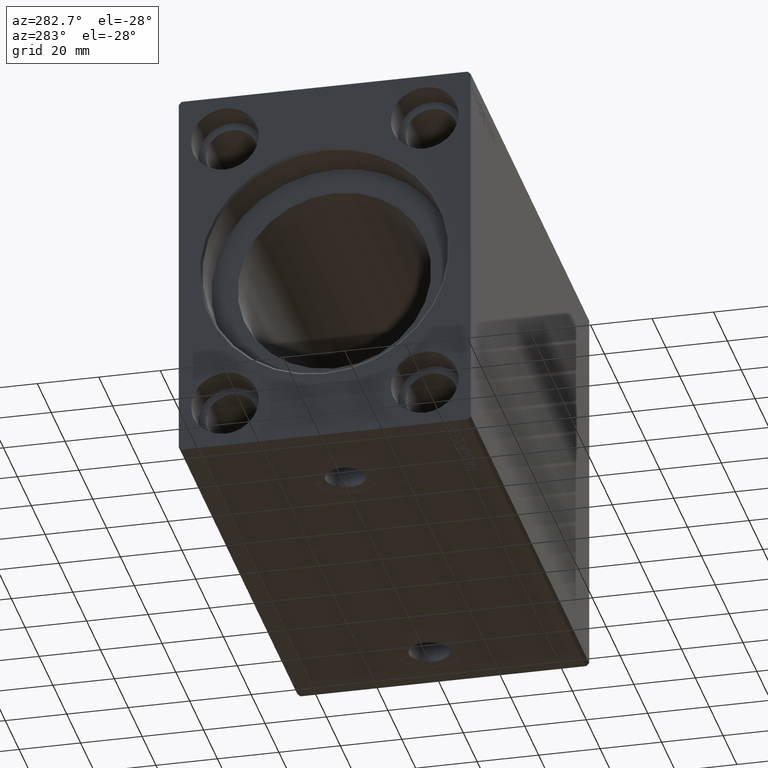
[diagram: clean part render]
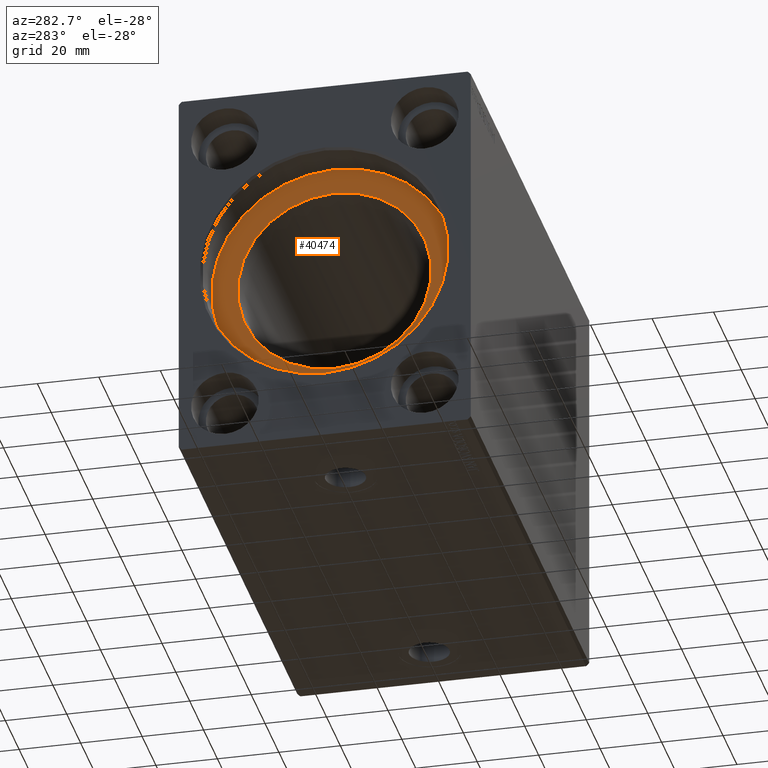
[diagram: same view with one face highlighted and labeled with its STEP entity id]
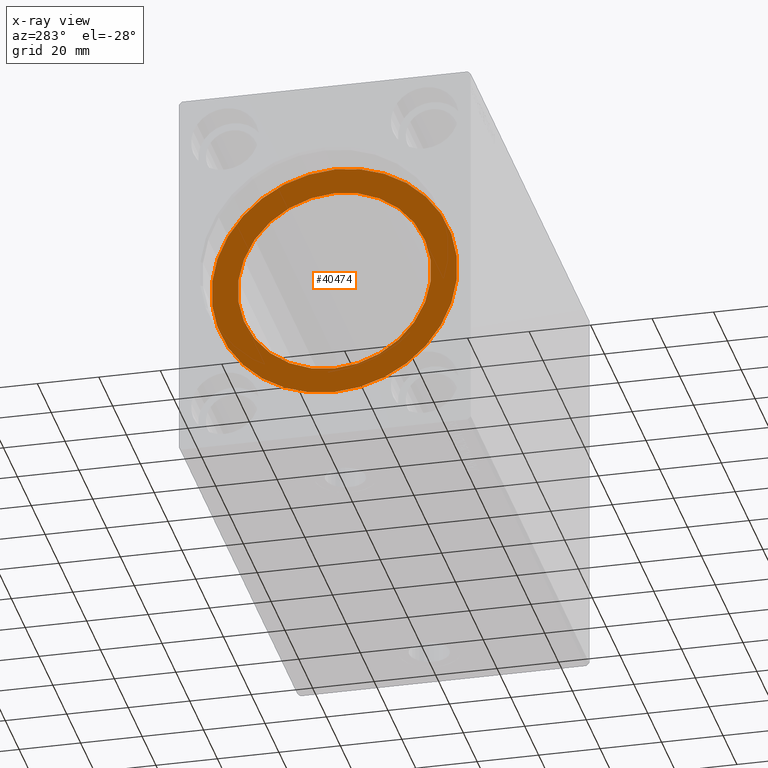
[diagram: x-ray of the same camera — body ghosted, the highlighted face saturated]
A machine part, auxiliary view. The second image highlights one B-rep face of the part: STEP entity #40474.
The next image is the same camera in x-ray: the body ghosted, the highlighted face saturated — about 0% of this face is hidden behind the body in this view.
In plain terms, the highlighted planar face has unit normal (-1, 0, 0).
Its self-contained STEP definition (entity closure, byte-faithful):
#2762 = ORIENTED_EDGE ( 'NONE', *, *, #30798, .T. ) ;
#3147 = EDGE_CURVE ( 'NONE', #6858, #9845, #30953, .T. ) ;
#4984 = DIRECTION ( 'NONE',  ( -1.000000000000000000, 0.000000000000000000, 0.000000000000000000 ) ) ;
#6258 = DIRECTION ( 'NONE',  ( -1.000000000000000000, 0.000000000000000000, 0.000000000000000000 ) ) ;
#6769 = CARTESIAN_POINT ( 'NONE',  ( 14.00000000000000000, 0.000000000000000000, 40.00000000000000000 ) ) ;
#6821 = CARTESIAN_POINT ( 'NONE',  ( 14.00000000000000000, 4.898587196589413026E-15, -40.00000000000000000 ) ) ;
#6858 = VERTEX_POINT ( 'NONE', #19340 ) ;
#7371 = CARTESIAN_POINT ( 'NONE',  ( 14.00000000000001243, 0.000000000000000000, 0.000000000000000000 ) ) ;
#8101 = CIRCLE ( 'NONE', #17847, 40.00000000000000000 ) ;
#9392 = DIRECTION ( 'NONE',  ( 0.000000000000000000, 0.000000000000000000, 1.000000000000000000 ) ) ;
#9845 = VERTEX_POINT ( 'NONE', #22237 ) ;
#11643 = DIRECTION ( 'NONE',  ( 0.000000000000000000, 0.000000000000000000, 1.000000000000000000 ) ) ;
#11729 = AXIS2_PLACEMENT_3D ( 'NONE', #24995, #21356, #28851 ) ;
#12817 = FACE_BOUND ( 'NONE', #16602, .T. ) ;
#14316 = ORIENTED_EDGE ( 'NONE', *, *, #35473, .F. ) ;
#14704 = VERTEX_POINT ( 'NONE', #6821 ) ;
#16602 = EDGE_LOOP ( 'NONE', ( #27879, #14316 ) ) ;
#17674 = CARTESIAN_POINT ( 'NONE',  ( 14.00000000000000000, 0.000000000000000000, 0.000000000000000000 ) ) ;
#17847 = AXIS2_PLACEMENT_3D ( 'NONE', #17674, #34191, #11643 ) ;
#18180 = EDGE_LOOP ( 'NONE', ( #40927, #2762 ) ) ;
#18477 = CIRCLE ( 'NONE', #30129, 31.50000000000000000 ) ;
#19121 = CIRCLE ( 'NONE', #29416, 40.00000000000000000 ) ;
#19340 = CARTESIAN_POINT ( 'NONE',  ( 14.00000000000001243, 0.000000000000000000, 31.50000000000000000 ) ) ;
#21231 = AXIS2_PLACEMENT_3D ( 'NONE', #32373, #21861, #9392 ) ;
#21356 = DIRECTION ( 'NONE',  ( -1.000000000000000000, 0.000000000000000000, 0.000000000000000000 ) ) ;
#21861 = DIRECTION ( 'NONE',  ( -1.000000000000000000, 0.000000000000000000, 0.000000000000000000 ) ) ;
#22075 = PLANE ( 'NONE',  #21231 ) ;
#22237 = CARTESIAN_POINT ( 'NONE',  ( 14.00000000000001243, 3.857637417314162689E-15, -31.50000000000000000 ) ) ;
#24995 = CARTESIAN_POINT ( 'NONE',  ( 14.00000000000001243, 0.000000000000000000, 0.000000000000000000 ) ) ;
#27879 = ORIENTED_EDGE ( 'NONE', *, *, #3147, .F. ) ;
#28851 = DIRECTION ( 'NONE',  ( 0.000000000000000000, 0.000000000000000000, 1.000000000000000000 ) ) ;
#29147 = FACE_OUTER_BOUND ( 'NONE', #18180, .T. ) ;
#29416 = AXIS2_PLACEMENT_3D ( 'NONE', #36530, #6258, #33112 ) ;
#30129 = AXIS2_PLACEMENT_3D ( 'NONE', #7371, #4984, #31203 ) ;
#30798 = EDGE_CURVE ( 'NONE', #14704, #31494, #8101, .T. ) ;
#30953 = CIRCLE ( 'NONE', #11729, 31.50000000000000000 ) ;
#31203 = DIRECTION ( 'NONE',  ( 0.000000000000000000, 0.000000000000000000, 1.000000000000000000 ) ) ;
#31494 = VERTEX_POINT ( 'NONE', #6769 ) ;
#32373 = CARTESIAN_POINT ( 'NONE',  ( 14.00000000000000000, 0.000000000000000000, 0.000000000000000000 ) ) ;
#33112 = DIRECTION ( 'NONE',  ( 0.000000000000000000, 0.000000000000000000, 1.000000000000000000 ) ) ;
#34191 = DIRECTION ( 'NONE',  ( -1.000000000000000000, 0.000000000000000000, 0.000000000000000000 ) ) ;
#35473 = EDGE_CURVE ( 'NONE', #9845, #6858, #18477, .T. ) ;
#36530 = CARTESIAN_POINT ( 'NONE',  ( 14.00000000000000000, 0.000000000000000000, 0.000000000000000000 ) ) ;
#37607 = EDGE_CURVE ( 'NONE', #31494, #14704, #19121, .T. ) ;
#40474 = ADVANCED_FACE ( 'NONE', ( #12817, #29147 ), #22075, .T. ) ;
#40927 = ORIENTED_EDGE ( 'NONE', *, *, #37607, .T. ) ;